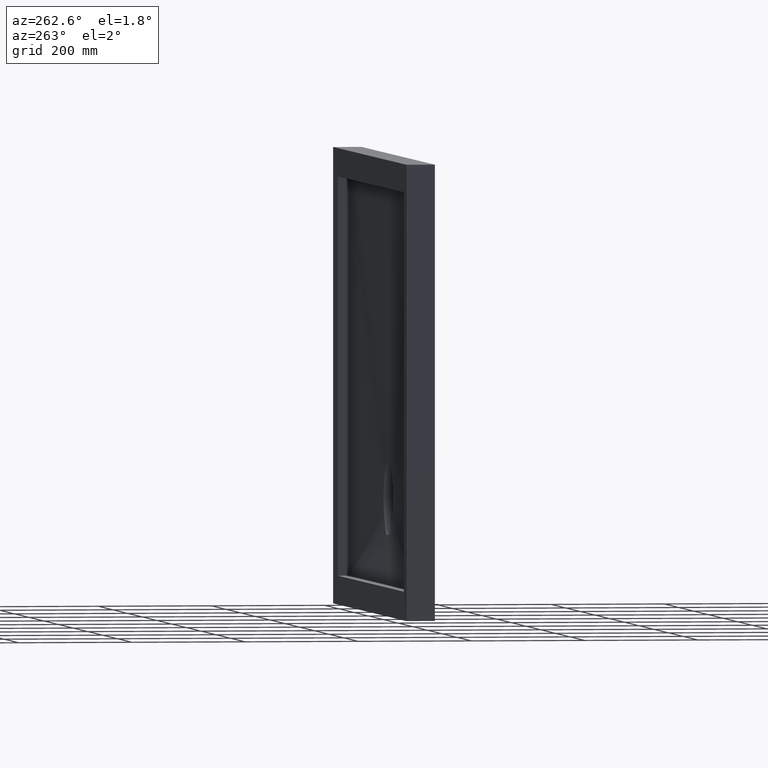
[diagram: clean part render]
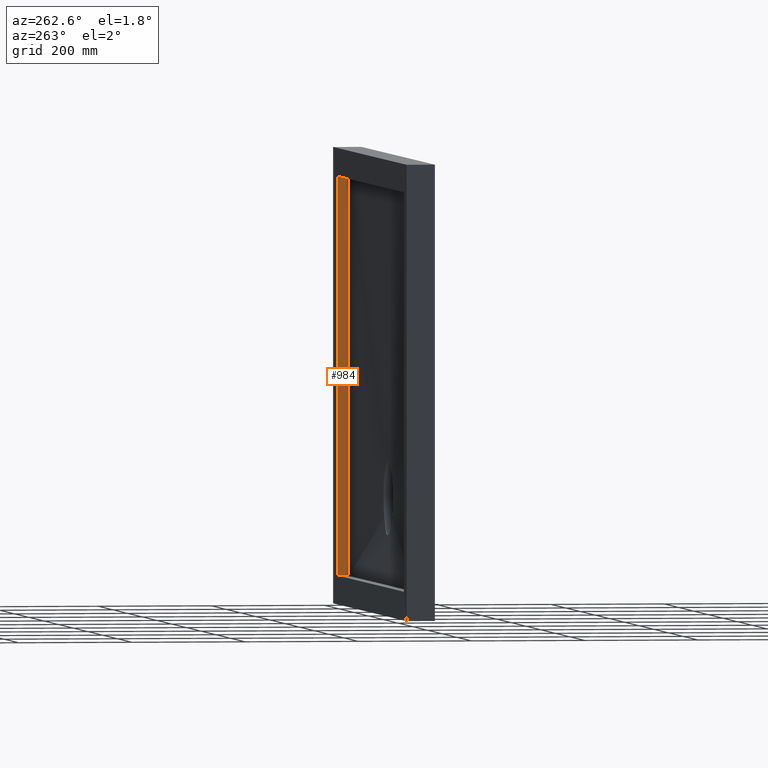
[diagram: same view with one face highlighted and labeled with its STEP entity id]
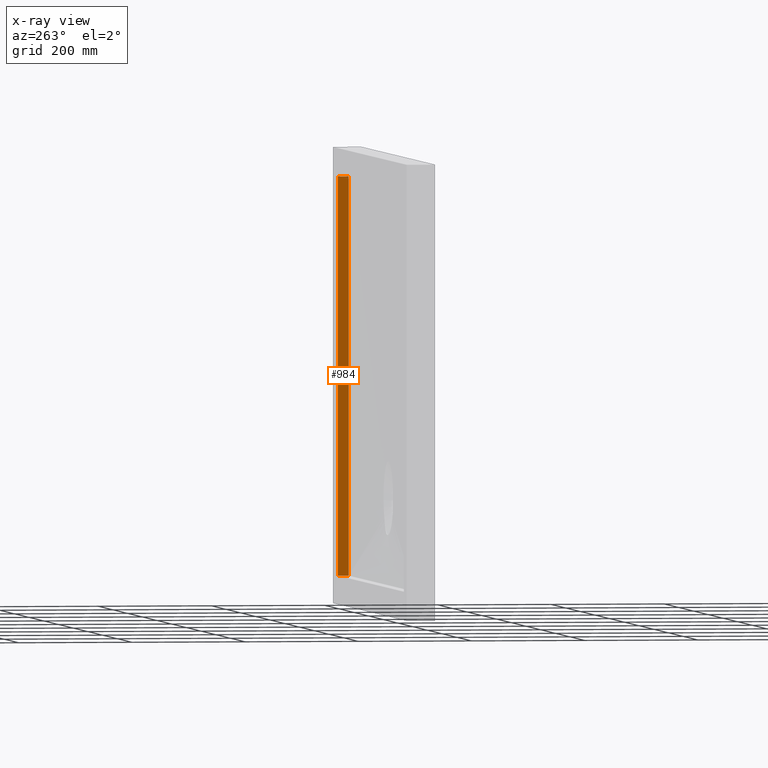
[diagram: x-ray of the same camera — body ghosted, the highlighted face saturated]
A machine part, auxiliary view. The second image highlights one B-rep face of the part: STEP entity #984.
The next image is the same camera in x-ray: the body ghosted, the highlighted face saturated — about 0% of this face is hidden behind the body in this view.
In plain terms, the highlighted planar face has unit normal (1, 0, -0).
Its self-contained STEP definition (entity closure, byte-faithful):
#64 = DIRECTION ( 'NONE',  ( -0.0000000000000000000, 1.000000000000000000, -0.0000000000000000000 ) ) ;
#129 = CARTESIAN_POINT ( 'NONE',  ( 450.0000000000002300, 29.00000000000000000, 350.0000000000002300 ) ) ;
#146 = EDGE_CURVE ( 'NONE', #547, #302, #515, .T. ) ;
#184 = VECTOR ( 'NONE', #577, 1000.000000000000000 ) ;
#201 = LINE ( 'NONE', #996, #390 ) ;
#239 = VECTOR ( 'NONE', #891, 1000.000000000000000 ) ;
#272 = CARTESIAN_POINT ( 'NONE',  ( 450.0000000000001100, 29.00000000000000000, -349.9999999999998900 ) ) ;
#276 = ORIENTED_EDGE ( 'NONE', *, *, #974, .T. ) ;
#302 = VERTEX_POINT ( 'NONE', #642 ) ;
#320 = CARTESIAN_POINT ( 'NONE',  ( 450.0000000000001100, -1140.175425099138000, -349.9999999999998900 ) ) ;
#351 = VERTEX_POINT ( 'NONE', #843 ) ;
#390 = VECTOR ( 'NONE', #64, 1000.000000000000000 ) ;
#459 = DIRECTION ( 'NONE',  ( -1.586032892321652000E-016, 0.0000000000000000000, -1.000000000000000000 ) ) ;
#479 = CARTESIAN_POINT ( 'NONE',  ( 450.0000000000001700, 28.99999999999991500, 116.6666666666668600 ) ) ;
#494 = FACE_OUTER_BOUND ( 'NONE', #553, .T. ) ;
#506 = CARTESIAN_POINT ( 'NONE',  ( 450.0000000000001100, 48.25745360236189200, -349.9999999999998300 ) ) ;
#515 = LINE ( 'NONE', #320, #239 ) ;
#536 = EDGE_CURVE ( 'NONE', #563, #302, #916, .T. ) ;
#547 = VERTEX_POINT ( 'NONE', #556 ) ;
#553 = EDGE_LOOP ( 'NONE', ( #276, #833, #743, #701 ) ) ;
#556 = CARTESIAN_POINT ( 'NONE',  ( 450.0000000000001100, 29.00000000000000000, -349.9999999999998900 ) ) ;
#563 = VERTEX_POINT ( 'NONE', #725 ) ;
#577 = DIRECTION ( 'NONE',  ( -1.586032892321652000E-016, 0.0000000000000000000, -1.000000000000000000 ) ) ;
#642 = CARTESIAN_POINT ( 'NONE',  ( 450.0000000000001100, 48.25745360236189200, -349.9999999999998900 ) ) ;
#658 = CARTESIAN_POINT ( 'NONE',  ( 450.0000000000002300, -1140.175425099138000, 350.0000000000002300 ) ) ;
#701 = ORIENTED_EDGE ( 'NONE', *, *, #703, .T. ) ;
#703 = EDGE_CURVE ( 'NONE', #547, #351, #783, .T. ) ;
#716 = PLANE ( 'NONE',  #966 ) ;
#725 = CARTESIAN_POINT ( 'NONE',  ( 450.0000000000002300, 48.25745360236189200, 350.0000000000002300 ) ) ;
#743 = ORIENTED_EDGE ( 'NONE', *, *, #146, .F. ) ;
#767 = DIRECTION ( 'NONE',  ( 1.000000000000000000, 0.0000000000000000000, -1.586032892321652000E-016 ) ) ;
#783 = B_SPLINE_CURVE_WITH_KNOTS ( 'NONE', 3,
 ( #272, #893, #479, #129 ),
 .UNSPECIFIED., .F., .F.,
 ( 4, 4 ),
 ( 0.0000000000000000000, 1.000000000000000000 ),
 .UNSPECIFIED. ) ;
#833 = ORIENTED_EDGE ( 'NONE', *, *, #536, .T. ) ;
#843 = CARTESIAN_POINT ( 'NONE',  ( 450.0000000000002300, 29.00000000000000000, 350.0000000000002300 ) ) ;
#891 = DIRECTION ( 'NONE',  ( -0.0000000000000000000, 1.000000000000000000, -0.0000000000000000000 ) ) ;
#893 = CARTESIAN_POINT ( 'NONE',  ( 450.0000000000001700, 28.99999999999991500, -116.6666666666665300 ) ) ;
#916 = LINE ( 'NONE', #506, #184 ) ;
#966 = AXIS2_PLACEMENT_3D ( 'NONE', #658, #767, #459 ) ;
#974 = EDGE_CURVE ( 'NONE', #351, #563, #201, .T. ) ;
#984 = ADVANCED_FACE ( 'NONE', ( #494 ), #716, .F. ) ;
#996 = CARTESIAN_POINT ( 'NONE',  ( 450.0000000000002300, -1140.175425099138000, 350.0000000000002300 ) ) ;